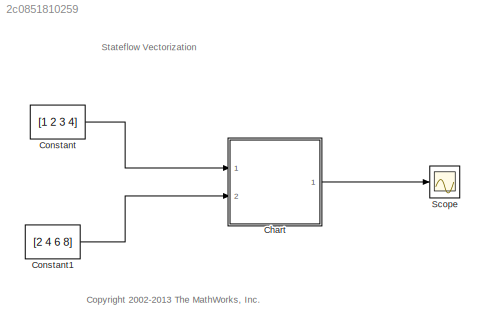
MODEL slx_2c0851810259
KIND model
CONFIG AbsTol = auto
CONFIG EnableMultiTasking = on
CONFIG FixedStep = auto
CONFIG MaxStep = 1
CONFIG MinStep = auto
CONFIG RelTol = 1e-3
CONFIG SampleTimeConstraint = Unconstrained
CONFIG Solver = ode45
CONFIG SolverName = ode45
CONFIG StartTime = 0
CONFIG StopTime = 1
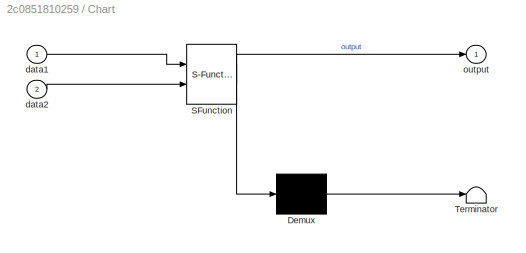
BLOCK [SubSystem] Chart
  ErrorFcn = Stateflow.Translate.translate
  PermitHierarchicalResolution = ExplicitOnly
  Ports = [2, 1]
  RequestExecContextInheritance = off
  SFBlockType = Chart
  TreatAsAtomicUnit = on
  Variant = off
BLOCK [Demux] Chart/ Demux 
  Outputs = 1
  Ports = [1, 1]
BLOCK [S-Function] Chart/ SFunction 
  EnableBusSupport = off
  FunctionName = sf_sfun
  PortCounts = [2 2]
  Ports = [2, 2]
  SFcnIsStateOwnerBlock = off
  SFunctionDeploymentMode = off
  Tag = Stateflow S-Function sf_array 1
BLOCK [Terminator] Chart/ Terminator 
BLOCK [Inport] Chart/data1
  IconDisplay = Port number
BLOCK [Inport] Chart/data2
  IconDisplay = Port number
  Port = 2
BLOCK [Outport] Chart/output
  IconDisplay = Port number
BLOCK [Constant] Constant
  Value = [1 2 3 4]
BLOCK [Constant] Constant1
  Value = [2 4 6 8]
BLOCK [Scope] Scope
  NumInputPorts = 1
  Ports = [1]
  ScopeSpecificationString = Simulink.scopes.TimeScopeBlockCfg('CurrentConfiguration', extmgr.ConfigurationSet(extmgr.Configuration('Core','General UI',true),extmgr.Configuration('Core','Source UI',true),extmgr.Configuration('Sources','WiredSimulink',true,'DataLoggingSaveFormat','StructureWithTime'),extmgr.Configuration('Visuals','Time Domain',true,'SerializedDisplays',{struct('MinYLimReal','0','MaxYLimReal','55','YLabelReal'...<+1679ch>
ANNOTATION (root): <copyright redacted>
ANNOTATION (root): Stateflow Vectorization
LINE Chart:1 -> Scope:1
LINE Constant1:1 -> Chart:2
LINE Constant:1 -> Chart:1
CHART Chart states=1 transitions=1
  STATE_LABEL 'Equivalent MATLAB code:\n\ndata1=[1 2 3 4];\ndata2=[2 4 6 8];\noutput=data1.*data2+1;'
